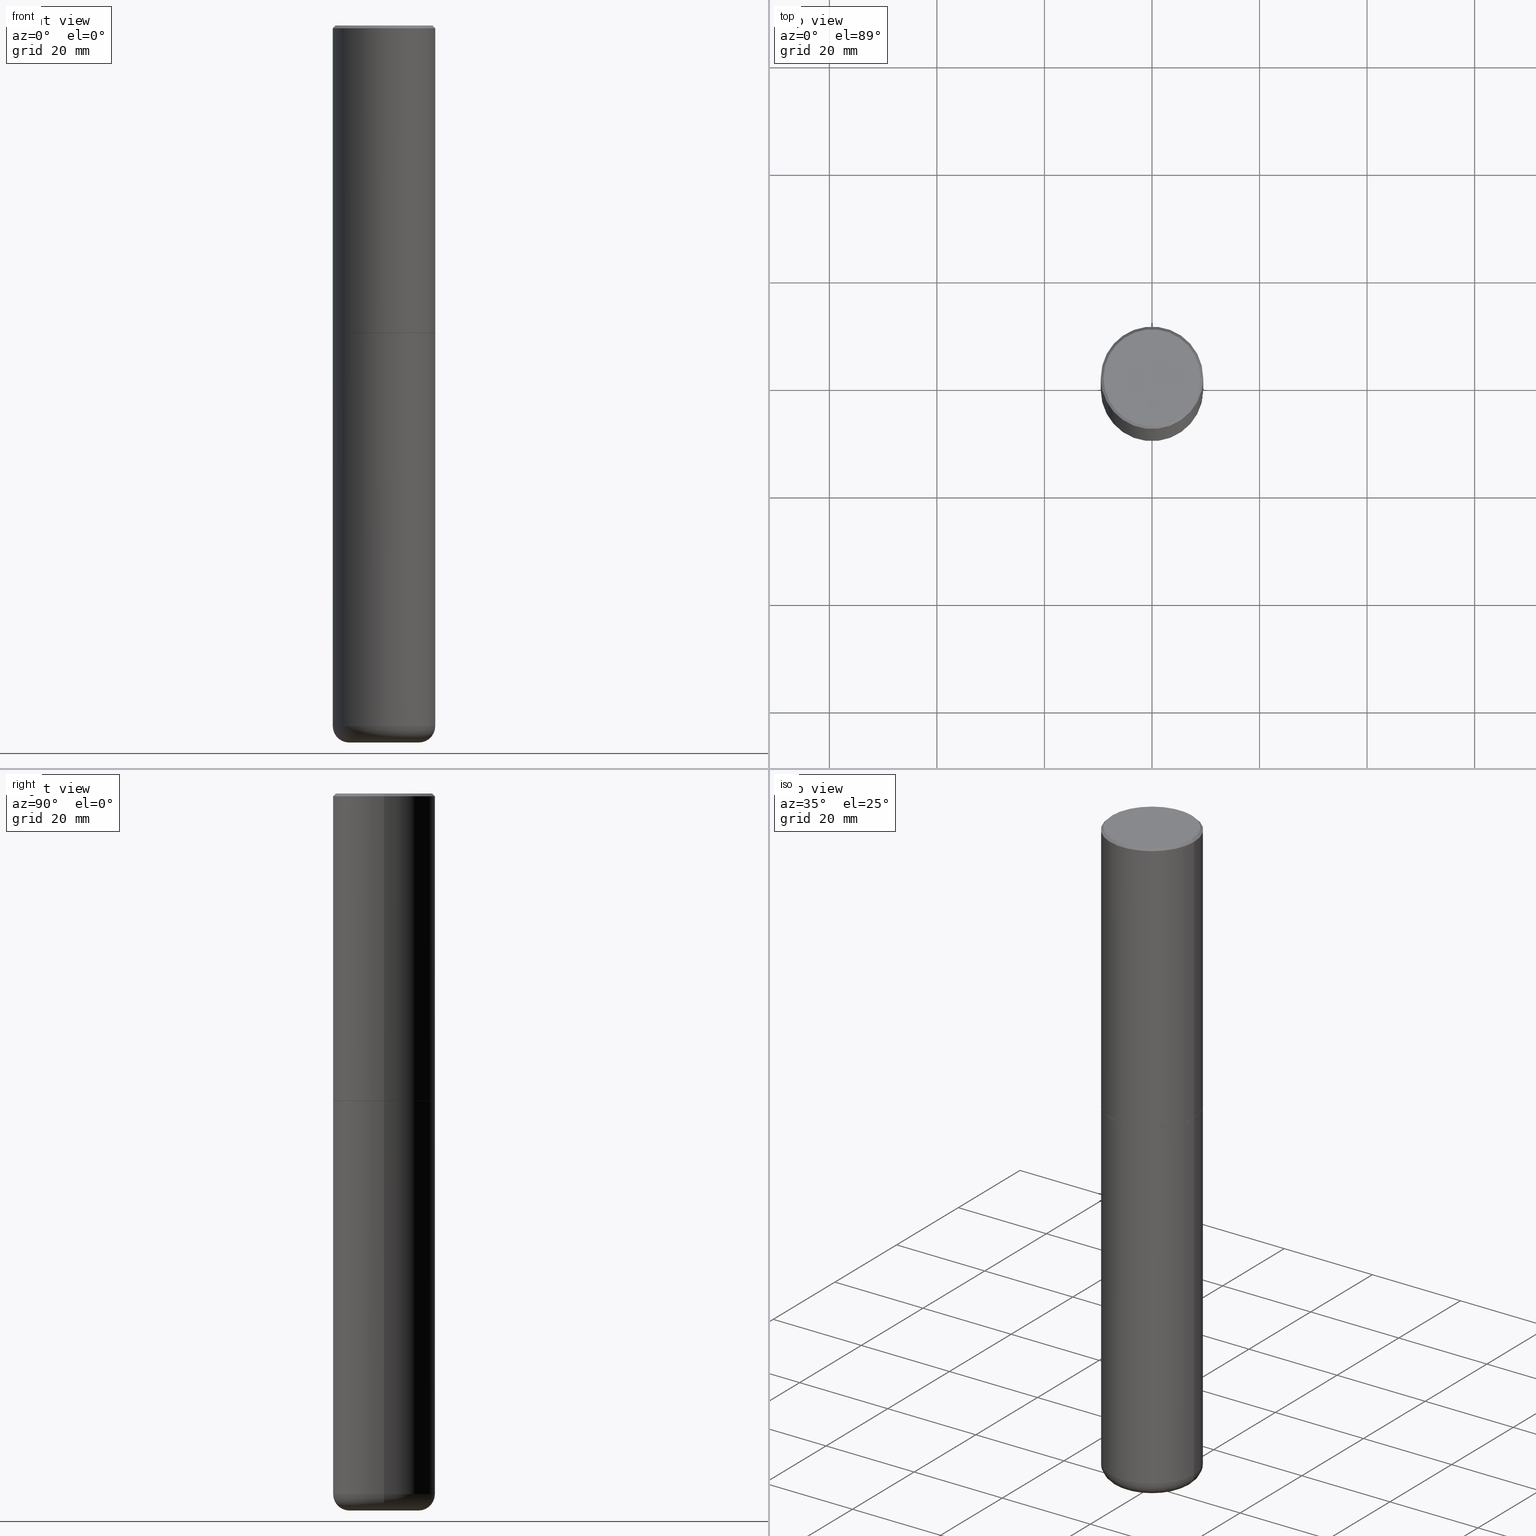
[diagram: canonical four-view strip — front | top / right | iso, engineering-drawing reading convention]
A machine part, canonical four-view strip (front | top / right | iso — engineering-drawing reading convention). The complete STEP part file that produces these views, byte-faithful:
ISO-10303-21;
HEADER;
FILE_DESCRIPTION (( 'STEP AP203' ),
    '1' );
FILE_NAME ('77459.STEP',
    '2024-05-02T19:44:49',
    ( '' ),
    ( '' ),
    'SwSTEP 2.0',
    'SolidWorks 2023',
    '' );
FILE_SCHEMA (( 'CONFIG_CONTROL_DESIGN' ));
ENDSEC;

DATA;
#1 = EDGE_LOOP ( 'NONE', ( #236, #32, #268, #145 ) ) ;
#2 = SHAPE_DEFINITION_REPRESENTATION ( #90, #57 ) ;
#3 = EDGE_CURVE ( 'NONE', #21, #169, #339, .T. ) ;
#4 = ORIENTED_EDGE ( 'NONE', *, *, #3, .F. ) ;
#5 = CARTESIAN_POINT ( 'NONE',  ( -0.3750000000000001665, 2.664535259100376880E-15, -1.844600658845590439E-29 ) ) ;
#6 = PERSON_AND_ORGANIZATION ( #296, #304 ) ;
#7 = ORIENTED_EDGE ( 'NONE', *, *, #45, .T. ) ;
#8 = SECURITY_CLASSIFICATION ( '', '', #367 ) ;
#9 = APPROVAL_STATUS ( 'not_yet_approved' ) ;
#10 = ORIENTED_EDGE ( 'NONE', *, *, #61, .F. ) ;
#11 = ORIENTED_EDGE ( 'NONE', *, *, #66, .F. ) ;
#12 = DATE_AND_TIME ( #42, #27 ) ;
#13 = CARTESIAN_POINT ( 'NONE',  ( 0.2550000000000000044, -2.011093251173650682E-14, -5.249999999999999112 ) ) ;
#14 = EDGE_LOOP ( 'NONE', ( #10, #11, #167, #407 ) ) ;
#15 = DIRECTION ( 'NONE',  ( -2.445468806185136597E-29, 3.491481338843145583E-15, 1.000000000000000000 ) ) ;
#16 = EDGE_CURVE ( 'NONE', #379, #375, #161, .T. ) ;
#17 = PRODUCT_DEFINITION_FORMATION_WITH_SPECIFIED_SOURCE ( 'ANY', '', #81, .NOT_KNOWN. ) ;
#18 = CARTESIAN_POINT ( 'NONE',  ( -0.3739999999999999991, -5.193104726306079780E-15, -2.250000000000000000 ) ) ;
#19 = ADVANCED_FACE ( 'NONE', ( #210 ), #282, .T. ) ;
#20 = ORIENTED_EDGE ( 'NONE', *, *, #315, .F. ) ;
#21 = VERTEX_POINT ( 'NONE', #46 ) ;
#22 = CARTESIAN_POINT ( 'NONE',  ( 5.499859345110371740E-29, -7.852341531058233864E-15, -2.249000000000000110 ) ) ;
#23 = AXIS2_PLACEMENT_3D ( 'NONE', #158, #392, #100 ) ;
#24 = DIRECTION ( 'NONE',  ( -0.7071067811866199593, 7.493145998870616062E-15, 0.7071067811864750752 ) ) ;
#25 = DIRECTION ( 'NONE',  ( -2.445468806185136597E-29, 3.491481338843145583E-15, 1.000000000000000000 ) ) ;
#26 = AXIS2_PLACEMENT_3D ( 'NONE', #416, #25, #214 ) ;
#27 = LOCAL_TIME ( 15, 44, 49.00000000000000000, #362 ) ;
#28 = APPLICATION_PROTOCOL_DEFINITION ( 'international standard', 'config_control_design', 1994, #89 ) ;
#29 = EDGE_CURVE ( 'NONE', #79, #246, #62, .T. ) ;
#30 = DIRECTION ( 'NONE',  ( 1.000000000000000000, -6.982962677686266711E-15, 4.876176775795935793E-29 ) ) ;
#31 = CARTESIAN_POINT ( 'NONE',  ( 0.000000000000000000, 0.000000000000000000, 0.000000000000000000 ) ) ;
#32 = ORIENTED_EDGE ( 'NONE', *, *, #95, .T. ) ;
#33 = PERSON_AND_ORGANIZATION ( #296, #304 ) ;
#34 = ORIENTED_EDGE ( 'NONE', *, *, #175, .F. ) ;
#35 = CARTESIAN_POINT ( 'NONE',  ( 5.502304813916557343E-29, -7.855833012397078448E-15, -2.250000000000000000 ) ) ;
#36 = EDGE_LOOP ( 'NONE', ( #20, #271 ) ) ;
#37 = PERSON_AND_ORGANIZATION ( #296, #304 ) ;
#38 = ORIENTED_EDGE ( 'NONE', *, *, #228, .F. ) ;
#39 = AXIS2_PLACEMENT_3D ( 'NONE', #190, #51, #318 ) ;
#40 = CYLINDRICAL_SURFACE ( 'NONE', #321, 0.3750000000000000555 ) ;
#41 = ORIENTED_EDGE ( 'NONE', *, *, #188, .F. ) ;
#42 = CALENDAR_DATE ( 2024, 2, 5 ) ;
#43 = DIRECTION ( 'NONE',  ( 2.445468806185136597E-29, -3.491481338843145583E-15, -1.000000000000000000 ) ) ;
#44 = DIRECTION ( 'NONE',  ( 0.7071067811865462405, -7.319954787623251312E-15, -0.7071067811865486830 ) ) ;
#45 = EDGE_CURVE ( 'NONE', #359, #330, #91, .T. ) ;
#46 = CARTESIAN_POINT ( 'NONE',  ( 0.3750000000000000555, -2.642516375941188029E-15, -0.02000000000000008715 ) ) ;
#47 = EDGE_CURVE ( 'NONE', #330, #359, #394, .T. ) ;
#48 = DIRECTION ( 'NONE',  ( -1.000000000000000000, 6.982962677686265922E-15, -4.876176775795935793E-29 ) ) ;
#49 = AXIS2_PLACEMENT_3D ( 'NONE', #370, #241, #374 ) ;
#50 = CARTESIAN_POINT ( 'NONE',  ( 1.254525497572975083E-28, -1.791129926826533659E-14, -5.129999999999999893 ) ) ;
#51 = DIRECTION ( 'NONE',  ( 2.445468806185136597E-29, -3.491481338843145583E-15, -1.000000000000000000 ) ) ;
#52 = DIRECTION ( 'NONE',  ( 2.438088387897960049E-29, -3.491481338843145188E-15, -1.000000000000000000 ) ) ;
#53 = LINE ( 'NONE', #412, #232 ) ;
#54 = DIRECTION ( 'NONE',  ( 1.000000000000000000, -6.982962677686266711E-15, 4.878367520217860717E-29 ) ) ;
#55 = AXIS2_PLACEMENT_3D ( 'NONE', #77, #15, #212 ) ;
#56 = APPROVAL ( #9, 'UNSPECIFIED' ) ;
#57 = ADVANCED_BREP_SHAPE_REPRESENTATION ( '77459', ( #369, #358, #386 ), #155 ) ;
#58 = DIRECTION ( 'NONE',  ( -2.445468806185136597E-29, 3.491481338843145583E-15, 1.000000000000000000 ) ) ;
#59 = DIRECTION ( 'NONE',  ( -2.445468806185136597E-29, 3.491481338843145583E-15, 1.000000000000000000 ) ) ;
#60 = CARTESIAN_POINT ( 'NONE',  ( 2.854868159318815822E-28, 4.167294683602726042E-15, -5.249999999999999112 ) ) ;
#61 = EDGE_CURVE ( 'NONE', #328, #21, #208, .T. ) ;
#62 = CIRCLE ( 'NONE', #154, 0.3739999999999999991 ) ;
#63 = AXIS2_PLACEMENT_3D ( 'NONE', #22, #146, #261 ) ;
#64 = DIRECTION ( 'NONE',  ( -2.445468806185136597E-29, 3.491481338843145583E-15, 1.000000000000000000 ) ) ;
#65 = APPLICATION_PROTOCOL_DEFINITION ( 'international standard', 'config_control_design', 1994, #383 ) ;
#66 = EDGE_CURVE ( 'NONE', #247, #328, #320, .T. ) ;
#67 = ORIENTED_EDGE ( 'NONE', *, *, #228, .T. ) ;
#68 = CONICAL_SURFACE ( 'NONE', #39, 0.3750000000000000555, 0.7853981633974466137 ) ;
#69 = APPROVAL_DATE_TIME ( #233, #56 ) ;
#70 = CARTESIAN_POINT ( 'NONE',  ( 0.000000000000000000, 0.000000000000000000, 0.000000000000000000 ) ) ;
#71 = APPROVAL_ROLE ( '' ) ;
#72 = APPROVAL_ROLE ( '' ) ;
#73 = ORIENTED_EDGE ( 'NONE', *, *, #93, .F. ) ;
#74 = PERSON_AND_ORGANIZATION_ROLE ( 'creator' ) ;
#75 = ORIENTED_EDGE ( 'NONE', *, *, #164, .T. ) ;
#76 = VECTOR ( 'NONE', #215, 39.37007874015748143 ) ;
#77 = CARTESIAN_POINT ( 'NONE',  ( 1.254525497572975083E-28, -1.791129926826533659E-14, -5.129999999999999893 ) ) ;
#78 = ORIENTED_EDGE ( 'NONE', *, *, #366, .F. ) ;
#79 = VERTEX_POINT ( 'NONE', #18 ) ;
#80 = ADVANCED_FACE ( 'NONE', ( #142 ), #111, .F. ) ;
#81 = PRODUCT ( '77459', '77459', '', ( #152 ) ) ;
#82 = ORIENTED_EDGE ( 'NONE', *, *, #188, .T. ) ;
#83 = ORIENTED_EDGE ( 'NONE', *, *, #16, .F. ) ;
#84 = UNCERTAINTY_MEASURE_WITH_UNIT (LENGTH_MEASURE( 1.000000000000000082E-05 ), #133, 'distance_accuracy_value', 'NONE');
#85 = DIRECTION ( 'NONE',  ( 1.000000000000000000, -6.982962677686265922E-15, 0.000000000000000000 ) ) ;
#86 = CARTESIAN_POINT ( 'NONE',  ( 0.3750000000000001665, -2.618611004132351200E-15, 1.828566290923476763E-29 ) ) ;
#87 = ORIENTED_EDGE ( 'NONE', *, *, #263, .T. ) ;
#88 = EDGE_CURVE ( 'NONE', #247, #169, #382, .T. ) ;
#89 = APPLICATION_CONTEXT ( 'configuration controlled 3d designs of mechanical parts and assemblies' ) ;
#90 = PRODUCT_DEFINITION_SHAPE ( 'NONE', 'NONE',  #237 ) ;
#91 = CIRCLE ( 'NONE', #55, 0.3750000000000000555 ) ;
#92 = CONICAL_SURFACE ( 'NONE', #123, 0.3750000000000000555, 0.7853981633974466137 ) ;
#93 = EDGE_CURVE ( 'NONE', #169, #21, #402, .T. ) ;
#94 = ORIENTED_EDGE ( 'NONE', *, *, #88, .F. ) ;
#95 = EDGE_CURVE ( 'NONE', #332, #373, #274, .T. ) ;
#96 = DIRECTION ( 'NONE',  ( -2.445468806185136597E-29, 3.491481338843145583E-15, 1.000000000000000000 ) ) ;
#97 = CARTESIAN_POINT ( 'NONE',  ( 5.502304813916557343E-29, -7.855833012397078448E-15, -2.250000000000000000 ) ) ;
#98 = AXIS2_PLACEMENT_3D ( 'NONE', #129, #157, #357 ) ;
#99 = ORIENTED_EDGE ( 'NONE', *, *, #336, .T. ) ;
#100 = DIRECTION ( 'NONE',  ( -1.000000000000000000, 7.105427357600993970E-15, 0.000000000000000000 ) ) ;
#101 = DATE_TIME_ROLE ( 'creation_date' ) ;
#102 = DATE_TIME_ROLE ( 'classification_date' ) ;
#103 = CARTESIAN_POINT ( 'NONE',  ( -0.3750000000000000555, -1.021903088123083182E-14, -2.250000000000000000 ) ) ;
#104 = APPROVAL_PERSON_ORGANIZATION ( #329, #56, #71 ) ;
#105 = DATE_AND_TIME ( #231, #380 ) ;
#106 = ORIENTED_EDGE ( 'NONE', *, *, #109, .F. ) ;
#107 = DIRECTION ( 'NONE',  ( 1.000000000000000000, -6.982962677686264344E-15, 0.000000000000000000 ) ) ;
#108 = FACE_OUTER_BOUND ( 'NONE', #378, .T. ) ;
#109 = EDGE_CURVE ( 'NONE', #359, #379, #120, .T. ) ;
#110 = DIRECTION ( 'NONE',  ( -2.445468806185136597E-29, 3.491481338843145583E-15, 1.000000000000000000 ) ) ;
#111 = PLANE ( 'NONE',  #291 ) ;
#112 = ORIENTED_EDGE ( 'NONE', *, *, #227, .T. ) ;
#113 = EDGE_LOOP ( 'NONE', ( #245, #112 ) ) ;
#114 = ADVANCED_FACE ( 'NONE', ( #385 ), #276, .T. ) ;
#115 = DIRECTION ( 'NONE',  ( 1.000000000000000000, -6.982962677686266711E-15, 4.876176775795935793E-29 ) ) ;
#116 = CIRCLE ( 'NONE', #26, 0.3739999999999999991 ) ;
#117 = CONICAL_SURFACE ( 'NONE', #162, 0.3739999999999999991, 0.7853981633975507526 ) ;
#118 = DIRECTION ( 'NONE',  ( 1.000000000000000000, -6.982962677686268288E-15, 0.000000000000000000 ) ) ;
#119 = LINE ( 'NONE', #253, #341 ) ;
#120 = LINE ( 'NONE', #186, #76 ) ;
#121 = CARTESIAN_POINT ( 'NONE',  ( 0.3750000000000000555, -2.618611004132350016E-15, 1.828566290923476203E-29 ) ) ;
#122 = CLOSED_SHELL ( 'NONE', ( #137, #384, #411, #19, #114, #124 ) ) ;
#123 = AXIS2_PLACEMENT_3D ( 'NONE', #270, #43, #279 ) ;
#124 = ADVANCED_FACE ( 'NONE', ( #347 ), #352, .T. ) ;
#125 = CARTESIAN_POINT ( 'NONE',  ( 0.000000000000000000, 0.000000000000000000, 0.000000000000000000 ) ) ;
#126 = DIRECTION ( 'NONE',  ( 1.000000000000000000, -6.982962677686265922E-15, 4.876176775795935793E-29 ) ) ;
#127 = DATE_AND_TIME ( #165, #325 ) ;
#128 = APPROVAL ( #355, 'UNSPECIFIED' ) ;
#129 = CARTESIAN_POINT ( 'NONE',  ( 1.283871123247196489E-28, -1.833027702892651007E-14, -5.249999999999999112 ) ) ;
#130 = EDGE_CURVE ( 'NONE', #375, #379, #140, .T. ) ;
#131 = ORIENTED_EDGE ( 'NONE', *, *, #315, .T. ) ;
#132 = ORIENTED_EDGE ( 'NONE', *, *, #130, .F. ) ;
#133 =( CONVERSION_BASED_UNIT ( 'INCH', #343 ) LENGTH_UNIT ( ) NAMED_UNIT ( #183 ) );
#134 = EDGE_LOOP ( 'NONE', ( #34, #297, #326, #405 ) ) ;
#135 = COORDINATED_UNIVERSAL_TIME_OFFSET ( 5, 0, .BEHIND. ) ;
#136 = EDGE_LOOP ( 'NONE', ( #306, #275, #132, #38 ) ) ;
#137 = ADVANCED_FACE ( 'NONE', ( #353 ), #40, .T. ) ;
#138 = EDGE_LOOP ( 'NONE', ( #82, #143, #371, #204 ) ) ;
#139 = AXIS2_PLACEMENT_3D ( 'NONE', #289, #58, #414 ) ;
#140 = CIRCLE ( 'NONE', #239, 0.3750000000000000555 ) ;
#141 = CC_DESIGN_DATE_AND_TIME_ASSIGNMENT ( #105, #101, ( #237 ) ) ;
#142 = FACE_OUTER_BOUND ( 'NONE', #113, .T. ) ;
#143 = ORIENTED_EDGE ( 'NONE', *, *, #175, .T. ) ;
#144 = CYLINDRICAL_SURFACE ( 'NONE', #283, 0.3750000000000001665 ) ;
#145 = ORIENTED_EDGE ( 'NONE', *, *, #45, .F. ) ;
#146 = DIRECTION ( 'NONE',  ( -2.445468806185136597E-29, 3.491481338843145583E-15, 1.000000000000000000 ) ) ;
#147 = AXIS2_PLACEMENT_3D ( 'NONE', #70, #226, #30 ) ;
#148 = DIRECTION ( 'NONE',  ( -2.445468806185136597E-29, 3.491481338843145583E-15, 1.000000000000000000 ) ) ;
#149 = DIRECTION ( 'NONE',  ( -0.7071067811865462405, 2.468850131082243650E-15, -0.7071067811865486830 ) ) ;
#150 = DIRECTION ( 'NONE',  ( 0.7071067811866199593, -2.468850131083015945E-15, 0.7071067811864750752 ) ) ;
#151 = ADVANCED_FACE ( 'NONE', ( #181 ), #92, .T. ) ;
#152 = MECHANICAL_CONTEXT ( 'NONE', #89, 'mechanical' ) ;
#153 = DIRECTION ( 'NONE',  ( 1.000000000000000000, -6.982962677686267499E-15, 0.000000000000000000 ) ) ;
#154 = AXIS2_PLACEMENT_3D ( 'NONE', #340, #238, #118 ) ;
#155 =( GEOMETRIC_REPRESENTATION_CONTEXT ( 3 ) GLOBAL_UNCERTAINTY_ASSIGNED_CONTEXT ( ( #84 ) ) GLOBAL_UNIT_ASSIGNED_CONTEXT ( ( #133, #398, #372 ) ) REPRESENTATION_CONTEXT ( 'NONE', 'WORKASPACE' ) );
#156 = DIRECTION ( 'NONE',  ( 1.000000000000000000, -6.982962677686265922E-15, 0.000000000000000000 ) ) ;
#157 = DIRECTION ( 'NONE',  ( -2.445468806185136597E-29, 3.491481338843145583E-15, 1.000000000000000000 ) ) ;
#158 = CARTESIAN_POINT ( 'NONE',  ( -0.2550000000000000044, -1.609941529207708187E-14, -5.129999999999999893 ) ) ;
#159 = CARTESIAN_POINT ( 'NONE',  ( 0.3550000000000001488, -2.538996582575041837E-15, -1.622034746237980703E-16 ) ) ;
#160 = DIRECTION ( 'NONE',  ( -2.445468806185136597E-29, 3.491481338843145583E-15, 1.000000000000000000 ) ) ;
#161 = CIRCLE ( 'NONE', #364, 0.3750000000000000555 ) ;
#162 = AXIS2_PLACEMENT_3D ( 'NONE', #346, #287, #387 ) ;
#163 = LOCAL_TIME ( 15, 44, 49.00000000000000000, #135 ) ;
#164 = EDGE_CURVE ( 'NONE', #333, #361, #224, .T. ) ;
#165 = CALENDAR_DATE ( 2024, 2, 5 ) ;
#166 = DIRECTION ( 'NONE',  ( 1.000000000000000000, -6.982962677686265922E-15, 4.876176775795935793E-29 ) ) ;
#167 = ORIENTED_EDGE ( 'NONE', *, *, #88, .T. ) ;
#168 = CARTESIAN_POINT ( 'NONE',  ( -0.3749999999999996669, -1.524676400916496405E-14, -5.129999999999999893 ) ) ;
#169 = VERTEX_POINT ( 'NONE', #284 ) ;
#170 = FACE_OUTER_BOUND ( 'NONE', #225, .T. ) ;
#171 = CALENDAR_DATE ( 2024, 2, 5 ) ;
#172 = VECTOR ( 'NONE', #44, 39.37007874015748854 ) ;
#173 = AXIS2_PLACEMENT_3D ( 'NONE', #285, #314, #153 ) ;
#174 = ORIENTED_EDGE ( 'NONE', *, *, #47, .F. ) ;
#175 = EDGE_CURVE ( 'NONE', #79, #361, #53, .T. ) ;
#176 = DIRECTION ( 'NONE',  ( -2.445468806185136597E-29, 3.491481338843145583E-15, 1.000000000000000000 ) ) ;
#177 = ORIENTED_EDGE ( 'NONE', *, *, #288, .T. ) ;
#178 = ORIENTED_EDGE ( 'NONE', *, *, #130, .T. ) ;
#179 = CARTESIAN_POINT ( 'NONE',  ( 5.502304813916557343E-29, -7.855833012397078448E-15, -2.250000000000000000 ) ) ;
#180 = AXIS2_PLACEMENT_3D ( 'NONE', #259, #148, #219 ) ;
#181 = FACE_OUTER_BOUND ( 'NONE', #305, .T. ) ;
#182 = CARTESIAN_POINT ( 'NONE',  ( 2.478951750578625787E-15, 0.3550000000000001488, -1.320577612601225142E-15 ) ) ;
#183 = DIMENSIONAL_EXPONENTS ( 1.000000000000000000, 0.000000000000000000, 0.000000000000000000, 0.000000000000000000, 0.000000000000000000, 0.000000000000000000, 0.000000000000000000 ) ;
#184 = CARTESIAN_POINT ( 'NONE',  ( 0.3739999999999999991, -1.046746105385174245E-14, -2.250000000000000000 ) ) ;
#185 = DIRECTION ( 'NONE',  ( -1.000000000000000000, 6.982962677686265922E-15, -4.876176775795935793E-29 ) ) ;
#186 = CARTESIAN_POINT ( 'NONE',  ( -0.3750000000000000555, 2.664535259100376091E-15, -1.844600658845589598E-29 ) ) ;
#187 = APPROVAL_PERSON_ORGANIZATION ( #33, #128, #197 ) ;
#188 = EDGE_CURVE ( 'NONE', #246, #79, #116, .T. ) ;
#189 = CC_DESIGN_PERSON_AND_ORGANIZATION_ASSIGNMENT ( #396, #74, ( #17 ) ) ;
#190 = CARTESIAN_POINT ( 'NONE',  ( 4.890937612370294178E-31, -6.982962677686321191E-17, -0.02000000000000008715 ) ) ;
#191 = DIRECTION ( 'NONE',  ( 2.438088387897960049E-29, -3.491481338843145188E-15, -1.000000000000000000 ) ) ;
#192 = EDGE_CURVE ( 'NONE', #246, #333, #119, .T. ) ;
#193 = CC_DESIGN_APPROVAL ( #303, ( #17 ) ) ;
#194 = LINE ( 'NONE', #5, #260 ) ;
#195 = CC_DESIGN_PERSON_AND_ORGANIZATION_ASSIGNMENT ( #393, #322, ( #237 ) ) ;
#196 = DIRECTION ( 'NONE',  ( 1.000000000000000000, -6.982962677686268288E-15, 0.000000000000000000 ) ) ;
#197 = APPROVAL_ROLE ( '' ) ;
#198 = PERSON_AND_ORGANIZATION ( #296, #304 ) ;
#199 = CARTESIAN_POINT ( 'NONE',  ( 0.3749999999999996669, -2.052991027239768345E-14, -5.129999999999999893 ) ) ;
#200 = CC_DESIGN_APPROVAL ( #128, ( #237 ) ) ;
#201 = CC_DESIGN_PERSON_AND_ORGANIZATION_ASSIGNMENT ( #198, #293, ( #8 ) ) ;
#202 = DIRECTION ( 'NONE',  ( -2.438088387897960049E-29, 3.491481338843145188E-15, 1.000000000000000000 ) ) ;
#203 = COORDINATED_UNIVERSAL_TIME_OFFSET ( 5, 0, .BEHIND. ) ;
#204 = ORIENTED_EDGE ( 'NONE', *, *, #192, .F. ) ;
#205 = AXIS2_PLACEMENT_3D ( 'NONE', #230, #323, #294 ) ;
#206 = EDGE_LOOP ( 'NONE', ( #106, #7, #67, #83 ) ) ;
#207 = ADVANCED_FACE ( 'NONE', ( #254 ), #117, .T. ) ;
#208 = LINE ( 'NONE', #252, #172 ) ;
#209 = CARTESIAN_POINT ( 'NONE',  ( 4.890937612370294178E-31, -6.982962677686321191E-17, -0.02000000000000008715 ) ) ;
#210 = FACE_OUTER_BOUND ( 'NONE', #206, .T. ) ;
#211 = CIRCLE ( 'NONE', #23, 0.1199999999999993988 ) ;
#212 = DIRECTION ( 'NONE',  ( 1.000000000000000000, -6.982962677686261189E-15, 0.000000000000000000 ) ) ;
#213 = DIRECTION ( 'NONE',  ( -2.445468806185136877E-29, 3.491481338843145188E-15, 1.000000000000000000 ) ) ;
#214 = DIRECTION ( 'NONE',  ( 1.000000000000000000, -6.982962677686268288E-15, 0.000000000000000000 ) ) ;
#215 = DIRECTION ( 'NONE',  ( -2.445468806185136877E-29, 3.491481338843145188E-15, 1.000000000000000000 ) ) ;
#216 = AXIS2_PLACEMENT_3D ( 'NONE', #257, #286, #156 ) ;
#217 = AXIS2_PLACEMENT_3D ( 'NONE', #179, #244, #48 ) ;
#218 = FACE_OUTER_BOUND ( 'NONE', #14, .T. ) ;
#219 = DIRECTION ( 'NONE',  ( 1.000000000000000000, -6.982962677686263555E-15, 4.883557194083111219E-29 ) ) ;
#220 = DIRECTION ( 'NONE',  ( 1.000000000000000000, 0.000000000000000000, 0.000000000000000000 ) ) ;
#221 = DIRECTION ( 'NONE',  ( 1.000000000000000000, -6.982962677686264344E-15, 0.000000000000000000 ) ) ;
#222 = CC_DESIGN_PERSON_AND_ORGANIZATION_ASSIGNMENT ( #240, #265, ( #17 ) ) ;
#223 = FACE_OUTER_BOUND ( 'NONE', #311, .T. ) ;
#224 = CIRCLE ( 'NONE', #173, 0.3750000000000002776 ) ;
#225 = EDGE_LOOP ( 'NONE', ( #131, #99, #174, #229 ) ) ;
#226 = DIRECTION ( 'NONE',  ( -2.445468806185136597E-29, 3.491481338843145583E-15, 1.000000000000000000 ) ) ;
#227 = EDGE_CURVE ( 'NONE', #328, #247, #331, .T. ) ;
#228 = EDGE_CURVE ( 'NONE', #330, #375, #413, .T. ) ;
#229 = ORIENTED_EDGE ( 'NONE', *, *, #351, .F. ) ;
#230 = CARTESIAN_POINT ( 'NONE',  ( 0.2550000000000000044, -1.969195475107533334E-14, -5.129999999999999893 ) ) ;
#231 = CALENDAR_DATE ( 2024, 2, 5 ) ;
#232 = VECTOR ( 'NONE', #24, 39.37007874015748143 ) ;
#233 = DATE_AND_TIME ( #269, #163 ) ;
#234 = APPROVAL_DATE_TIME ( #127, #128 ) ;
#235 = DESIGN_CONTEXT ( 'detailed design', #383, 'design' ) ;
#236 = ORIENTED_EDGE ( 'NONE', *, *, #336, .F. ) ;
#237 = PRODUCT_DEFINITION ( 'UNKNOWN', '', #17, #235 ) ;
#238 = DIRECTION ( 'NONE',  ( -2.445468806185136597E-29, 3.491481338843145583E-15, 1.000000000000000000 ) ) ;
#239 = AXIS2_PLACEMENT_3D ( 'NONE', #388, #96, #221 ) ;
#240 = PERSON_AND_ORGANIZATION ( #296, #304 ) ;
#241 = DIRECTION ( 'NONE',  ( -2.445468806185136597E-29, 3.491481338843145583E-15, 1.000000000000000000 ) ) ;
#242 = ADVANCED_FACE ( 'NONE', ( #218 ), #68, .T. ) ;
#243 = ORIENTED_EDGE ( 'NONE', *, *, #3, .T. ) ;
#244 = DIRECTION ( 'NONE',  ( 2.438088387897960049E-29, -3.491481338843145188E-15, -1.000000000000000000 ) ) ;
#245 = ORIENTED_EDGE ( 'NONE', *, *, #66, .T. ) ;
#246 = VERTEX_POINT ( 'NONE', #184 ) ;
#247 = VERTEX_POINT ( 'NONE', #312 ) ;
#248 = AXIS2_PLACEMENT_3D ( 'NONE', #410, #338, #307 ) ;
#249 = AXIS2_PLACEMENT_3D ( 'NONE', #209, #110, #85 ) ;
#250 = VECTOR ( 'NONE', #213, 39.37007874015748143 ) ;
#251 = DIRECTION ( 'NONE',  ( -2.445468806185136597E-29, 3.491481338843145583E-15, 1.000000000000000000 ) ) ;
#252 = CARTESIAN_POINT ( 'NONE',  ( 0.3750000000000000555, -2.642516375941188029E-15, -0.02000000000000008715 ) ) ;
#253 = CARTESIAN_POINT ( 'NONE',  ( 0.3739999999999999991, -1.046746105385174245E-14, -2.250000000000000000 ) ) ;
#254 = FACE_OUTER_BOUND ( 'NONE', #138, .T. ) ;
#255 = CLOSED_SHELL ( 'NONE', ( #207, #262, #151, #242, #319, #356, #334, #80 ) ) ;
#256 = APPROVAL_PERSON_ORGANIZATION ( #6, #303, #72 ) ;
#257 = CARTESIAN_POINT ( 'NONE',  ( 4.890937612370294178E-31, -6.982962677686321191E-17, -0.02000000000000008715 ) ) ;
#258 = DIRECTION ( 'NONE',  ( 0.000000000000000000, 0.000000000000000000, 1.000000000000000000 ) ) ;
#259 = CARTESIAN_POINT ( 'NONE',  ( 1.254525497572975083E-28, -1.791129926826533659E-14, -5.129999999999999893 ) ) ;
#260 = VECTOR ( 'NONE', #266, 39.37007874015748143 ) ;
#261 = DIRECTION ( 'NONE',  ( 1.000000000000000000, -6.982962677686267499E-15, 0.000000000000000000 ) ) ;
#262 = ADVANCED_FACE ( 'NONE', ( #345 ), #144, .T. ) ;
#263 = EDGE_CURVE ( 'NONE', #333, #21, #381, .T. ) ;
#264 = CYLINDRICAL_SURFACE ( 'NONE', #147, 0.3750000000000001665 ) ;
#265 = PERSON_AND_ORGANIZATION_ROLE ( 'design_supplier' ) ;
#266 = DIRECTION ( 'NONE',  ( -2.445468806185136877E-29, 3.491481338843145188E-15, 1.000000000000000000 ) ) ;
#267 = AXIS2_PLACEMENT_3D ( 'NONE', #50, #344, #308 ) ;
#268 = ORIENTED_EDGE ( 'NONE', *, *, #351, .T. ) ;
#269 = CALENDAR_DATE ( 2024, 2, 5 ) ;
#270 = CARTESIAN_POINT ( 'NONE',  ( 4.890937612370294178E-31, -6.982962677686321191E-17, -0.02000000000000008715 ) ) ;
#271 = ORIENTED_EDGE ( 'NONE', *, *, #95, .F. ) ;
#272 = CARTESIAN_POINT ( 'NONE',  ( 0.3750000000000000555, -1.047444401652942689E-14, -2.250000000000000000 ) ) ;
#273 = ORIENTED_EDGE ( 'NONE', *, *, #263, .F. ) ;
#274 = CIRCLE ( 'NONE', #139, 0.2550000000000000044 ) ;
#275 = ORIENTED_EDGE ( 'NONE', *, *, #109, .T. ) ;
#276 = TOROIDAL_SURFACE ( 'NONE', #180, 0.2550000000000000044, 0.1199999999999993711 ) ;
#277 =( LENGTH_UNIT ( ) NAMED_UNIT ( * ) SI_UNIT ( $, .METRE. ) );
#278 = DIRECTION ( 'NONE',  ( -2.445468806185136597E-29, 3.491481338843145583E-15, 1.000000000000000000 ) ) ;
#279 = DIRECTION ( 'NONE',  ( -1.000000000000000000, 6.982962677686265922E-15, 0.000000000000000000 ) ) ;
#280 = ORIENTED_EDGE ( 'NONE', *, *, #16, .T. ) ;
#281 = CARTESIAN_POINT ( 'NONE',  ( 0.000000000000000000, 0.000000000000000000, 0.000000000000000000 ) ) ;
#282 = CYLINDRICAL_SURFACE ( 'NONE', #248, 0.3750000000000000555 ) ;
#283 = AXIS2_PLACEMENT_3D ( 'NONE', #281, #251, #115 ) ;
#284 = CARTESIAN_POINT ( 'NONE',  ( -0.3750000000000000555, 2.548781377355486718E-15, -0.02000000000000008715 ) ) ;
#285 = CARTESIAN_POINT ( 'NONE',  ( 5.499859345110371740E-29, -7.852341531058233864E-15, -2.249000000000000110 ) ) ;
#286 = DIRECTION ( 'NONE',  ( -2.445468806185136597E-29, 3.491481338843145583E-15, 1.000000000000000000 ) ) ;
#287 = DIRECTION ( 'NONE',  ( -2.445468806185136597E-29, 3.491481338843145583E-15, 1.000000000000000000 ) ) ;
#288 = EDGE_CURVE ( 'NONE', #361, #333, #409, .T. ) ;
#289 = CARTESIAN_POINT ( 'NONE',  ( 1.283871123247196489E-28, -1.833027702892651007E-14, -5.249999999999999112 ) ) ;
#290 = FACE_OUTER_BOUND ( 'NONE', #300, .T. ) ;
#291 = AXIS2_PLACEMENT_3D ( 'NONE', #182, #52, #185 ) ;
#292 = CIRCLE ( 'NONE', #205, 0.1199999999999993988 ) ;
#293 = PERSON_AND_ORGANIZATION_ROLE ( 'classification_officer' ) ;
#294 = DIRECTION ( 'NONE',  ( 1.000000000000000000, -6.982962677686271444E-15, 0.000000000000000000 ) ) ;
#295 = COORDINATED_UNIVERSAL_TIME_OFFSET ( 5, 0, .BEHIND. ) ;
#296 = PERSON ( 'UNSPECIFIED', 'UNSPECIFIED', 'UNSPECIFIED', ('UNSPECIFIED'), ('UNSPECIFIED'), ('UNSPECIFIED') ) ;
#297 = ORIENTED_EDGE ( 'NONE', *, *, #29, .T. ) ;
#298 = CARTESIAN_POINT ( 'NONE',  ( -0.3750000000000002776, -1.296550319817168545E-15, -2.249000000000000110 ) ) ;
#299 = COORDINATED_UNIVERSAL_TIME_OFFSET ( 5, 0, .BEHIND. ) ;
#300 = EDGE_LOOP ( 'NONE', ( #78, #177, #87, #73 ) ) ;
#301 = DATE_AND_TIME ( #171, #309 ) ;
#302 = AXIS2_PLACEMENT_3D ( 'NONE', #404, #278, #376 ) ;
#303 = APPROVAL ( #368, 'UNSPECIFIED' ) ;
#304 = ORGANIZATION ( 'UNSPECIFIED', 'UNSPECIFIED', '' ) ;
#305 = EDGE_LOOP ( 'NONE', ( #406, #400, #243, #94 ) ) ;
#306 = ORIENTED_EDGE ( 'NONE', *, *, #47, .T. ) ;
#307 = DIRECTION ( 'NONE',  ( 1.000000000000000000, -6.982962677686265922E-15, 4.876176775795935793E-29 ) ) ;
#308 = DIRECTION ( 'NONE',  ( 1.000000000000000000, -6.982962677686261189E-15, 0.000000000000000000 ) ) ;
#309 = LOCAL_TIME ( 15, 44, 49.00000000000000000, #203 ) ;
#310 = CC_DESIGN_SECURITY_CLASSIFICATION ( #8, ( #17 ) ) ;
#311 = EDGE_LOOP ( 'NONE', ( #41, #377 ) ) ;
#312 = CARTESIAN_POINT ( 'NONE',  ( -0.3550000000000001488, 2.513866563967055858E-15, -1.622034746238331006E-16 ) ) ;
#313 = CARTESIAN_POINT ( 'NONE',  ( -0.3750000000000000555, 2.548781377355486718E-15, -0.02000000000000008715 ) ) ;
#314 = DIRECTION ( 'NONE',  ( -2.445468806185136597E-29, 3.491481338843145583E-15, 1.000000000000000000 ) ) ;
#315 = EDGE_CURVE ( 'NONE', #373, #332, #316, .T. ) ;
#316 = CIRCLE ( 'NONE', #98, 0.2550000000000000044 ) ;
#317 = EDGE_LOOP ( 'NONE', ( #75, #335, #4, #273 ) ) ;
#318 = DIRECTION ( 'NONE',  ( -1.000000000000000000, 6.982962677686265922E-15, 0.000000000000000000 ) ) ;
#319 = ADVANCED_FACE ( 'NONE', ( #290 ), #264, .T. ) ;
#320 = CIRCLE ( 'NONE', #302, 0.3550000000000001488 ) ;
#321 = AXIS2_PLACEMENT_3D ( 'NONE', #31, #160, #166 ) ;
#322 = PERSON_AND_ORGANIZATION_ROLE ( 'creator' ) ;
#323 = DIRECTION ( 'NONE',  ( -6.982962677686266711E-15, -1.000000000000000000, 3.491481338843145583E-15 ) ) ;
#324 = PERSON_AND_ORGANIZATION_ROLE ( 'design_owner' ) ;
#325 = LOCAL_TIME ( 15, 44, 49.00000000000000000, #299 ) ;
#326 = ORIENTED_EDGE ( 'NONE', *, *, #192, .T. ) ;
#327 = FACE_OUTER_BOUND ( 'NONE', #134, .T. ) ;
#328 = VERTEX_POINT ( 'NONE', #159 ) ;
#329 = PERSON_AND_ORGANIZATION ( #296, #304 ) ;
#330 = VERTEX_POINT ( 'NONE', #199 ) ;
#331 = CIRCLE ( 'NONE', #354, 0.3550000000000001488 ) ;
#332 = VERTEX_POINT ( 'NONE', #363 ) ;
#333 = VERTEX_POINT ( 'NONE', #360 ) ;
#334 = ADVANCED_FACE ( 'NONE', ( #223 ), #389, .F. ) ;
#335 = ORIENTED_EDGE ( 'NONE', *, *, #366, .T. ) ;
#336 = EDGE_CURVE ( 'NONE', #332, #359, #211, .T. ) ;
#337 = PLANE ( 'NONE',  #217 ) ;
#338 = DIRECTION ( 'NONE',  ( -2.445468806185136597E-29, 3.491481338843145583E-15, 1.000000000000000000 ) ) ;
#339 = CIRCLE ( 'NONE', #249, 0.3750000000000000555 ) ;
#340 = CARTESIAN_POINT ( 'NONE',  ( 5.502304813916557343E-29, -7.855833012397078448E-15, -2.250000000000000000 ) ) ;
#341 = VECTOR ( 'NONE', #150, 39.37007874015748143 ) ;
#342 = DIRECTION ( 'NONE',  ( -2.445468806185136877E-29, 3.491481338843145188E-15, 1.000000000000000000 ) ) ;
#343 = LENGTH_MEASURE_WITH_UNIT ( LENGTH_MEASURE( 0.02539999999999999897 ), #277 );
#344 = DIRECTION ( 'NONE',  ( -2.445468806185136597E-29, 3.491481338843145583E-15, 1.000000000000000000 ) ) ;
#345 = FACE_OUTER_BOUND ( 'NONE', #317, .T. ) ;
#346 = CARTESIAN_POINT ( 'NONE',  ( 5.502304813916557343E-29, -7.855833012397078448E-15, -2.250000000000000000 ) ) ;
#347 = FACE_OUTER_BOUND ( 'NONE', #36, .T. ) ;
#348 = VECTOR ( 'NONE', #149, 39.37007874015748854 ) ;
#349 = AXIS2_PLACEMENT_3D ( 'NONE', #60, #191, #417 ) ;
#350 = CC_DESIGN_DATE_AND_TIME_ASSIGNMENT ( #12, #102, ( #8 ) ) ;
#351 = EDGE_CURVE ( 'NONE', #373, #330, #292, .T. ) ;
#352 = PLANE ( 'NONE',  #349 ) ;
#353 = FACE_OUTER_BOUND ( 'NONE', #136, .T. ) ;
#354 = AXIS2_PLACEMENT_3D ( 'NONE', #408, #59, #54 ) ;
#355 = APPROVAL_STATUS ( 'not_yet_approved' ) ;
#356 = ADVANCED_FACE ( 'NONE', ( #327 ), #415, .T. ) ;
#357 = DIRECTION ( 'NONE',  ( 1.000000000000000000, -6.982962677686260400E-15, 0.000000000000000000 ) ) ;
#358 = MANIFOLD_SOLID_BREP ( 'Body-Move/Copy2[2]', #255 ) ;
#359 = VERTEX_POINT ( 'NONE', #168 ) ;
#360 = CARTESIAN_POINT ( 'NONE',  ( 0.3750000000000002776, -1.047095253519058704E-14, -2.249000000000000110 ) ) ;
#361 = VERTEX_POINT ( 'NONE', #298 ) ;
#362 = COORDINATED_UNIVERSAL_TIME_OFFSET ( 5, 0, .BEHIND. ) ;
#363 = CARTESIAN_POINT ( 'NONE',  ( -0.2550000000000000044, -1.588257853095161128E-14, -5.249999999999999112 ) ) ;
#364 = AXIS2_PLACEMENT_3D ( 'NONE', #399, #176, #107 ) ;
#365 = VECTOR ( 'NONE', #342, 39.37007874015748143 ) ;
#366 = EDGE_CURVE ( 'NONE', #361, #169, #194, .T. ) ;
#367 = SECURITY_CLASSIFICATION_LEVEL ( 'unclassified' ) ;
#368 = APPROVAL_STATUS ( 'not_yet_approved' ) ;
#369 = MANIFOLD_SOLID_BREP ( 'Body-Move/Copy2[1]', #122 ) ;
#370 = CARTESIAN_POINT ( 'NONE',  ( 1.254525497572975083E-28, -1.791129926826533659E-14, -5.129999999999999893 ) ) ;
#371 = ORIENTED_EDGE ( 'NONE', *, *, #164, .F. ) ;
#372 =( NAMED_UNIT ( * ) SI_UNIT ( $, .STERADIAN. ) SOLID_ANGLE_UNIT ( ) );
#373 = VERTEX_POINT ( 'NONE', #13 ) ;
#374 = DIRECTION ( 'NONE',  ( 1.000000000000000000, -6.982962677686263555E-15, 4.883557194083111219E-29 ) ) ;
#375 = VERTEX_POINT ( 'NONE', #272 ) ;
#376 = DIRECTION ( 'NONE',  ( 1.000000000000000000, -6.982962677686266711E-15, 4.878367520217860717E-29 ) ) ;
#377 = ORIENTED_EDGE ( 'NONE', *, *, #29, .F. ) ;
#378 = EDGE_LOOP ( 'NONE', ( #178, #280 ) ) ;
#379 = VERTEX_POINT ( 'NONE', #103 ) ;
#380 = LOCAL_TIME ( 15, 44, 49.00000000000000000, #295 ) ;
#381 = LINE ( 'NONE', #86, #250 ) ;
#382 = LINE ( 'NONE', #313, #348 ) ;
#383 = APPLICATION_CONTEXT ( 'configuration controlled 3d designs of mechanical parts and assemblies' ) ;
#384 = ADVANCED_FACE ( 'NONE', ( #170 ), #403, .T. ) ;
#385 = FACE_OUTER_BOUND ( 'NONE', #1, .T. ) ;
#386 = AXIS2_PLACEMENT_3D ( 'NONE', #125, #258, #220 ) ;
#387 = DIRECTION ( 'NONE',  ( 1.000000000000000000, -6.982962677686268288E-15, 0.000000000000000000 ) ) ;
#388 = CARTESIAN_POINT ( 'NONE',  ( 5.502304813916557343E-29, -7.855833012397078448E-15, -2.250000000000000000 ) ) ;
#389 = PLANE ( 'NONE',  #390 ) ;
#390 = AXIS2_PLACEMENT_3D ( 'NONE', #97, #202, #126 ) ;
#391 = CC_DESIGN_PERSON_AND_ORGANIZATION_ASSIGNMENT ( #37, #324, ( #81 ) ) ;
#392 = DIRECTION ( 'NONE',  ( 7.105427357601001859E-15, 1.000000000000000000, -3.491481338843145583E-15 ) ) ;
#393 = PERSON_AND_ORGANIZATION ( #296, #304 ) ;
#394 = CIRCLE ( 'NONE', #267, 0.3750000000000000555 ) ;
#395 = CC_DESIGN_APPROVAL ( #56, ( #8 ) ) ;
#396 = PERSON_AND_ORGANIZATION ( #296, #304 ) ;
#397 = APPROVAL_DATE_TIME ( #301, #303 ) ;
#398 =( NAMED_UNIT ( * ) PLANE_ANGLE_UNIT ( ) SI_UNIT ( $, .RADIAN. ) );
#399 = CARTESIAN_POINT ( 'NONE',  ( 5.502304813916557343E-29, -7.855833012397078448E-15, -2.250000000000000000 ) ) ;
#400 = ORIENTED_EDGE ( 'NONE', *, *, #61, .T. ) ;
#401 = PRODUCT_RELATED_PRODUCT_CATEGORY ( 'detail', '', ( #81 ) ) ;
#402 = CIRCLE ( 'NONE', #216, 0.3750000000000000555 ) ;
#403 = TOROIDAL_SURFACE ( 'NONE', #49, 0.2550000000000000044, 0.1199999999999993711 ) ;
#404 = CARTESIAN_POINT ( 'NONE',  ( 3.966635374473835042E-45, -5.663304047445699634E-31, -1.622034746238156224E-16 ) ) ;
#405 = ORIENTED_EDGE ( 'NONE', *, *, #288, .F. ) ;
#406 = ORIENTED_EDGE ( 'NONE', *, *, #227, .F. ) ;
#407 = ORIENTED_EDGE ( 'NONE', *, *, #93, .T. ) ;
#408 = CARTESIAN_POINT ( 'NONE',  ( 3.966635374473835042E-45, -5.663304047445699634E-31, -1.622034746238156224E-16 ) ) ;
#409 = CIRCLE ( 'NONE', #63, 0.3750000000000002776 ) ;
#410 = CARTESIAN_POINT ( 'NONE',  ( 0.000000000000000000, 0.000000000000000000, 0.000000000000000000 ) ) ;
#411 = ADVANCED_FACE ( 'NONE', ( #108 ), #337, .F. ) ;
#412 = CARTESIAN_POINT ( 'NONE',  ( -0.3739999999999999991, -5.198403180654302971E-15, -2.250000000000000000 ) ) ;
#413 = LINE ( 'NONE', #121, #365 ) ;
#414 = DIRECTION ( 'NONE',  ( 1.000000000000000000, -6.982962677686260400E-15, 0.000000000000000000 ) ) ;
#415 = CONICAL_SURFACE ( 'NONE', #418, 0.3739999999999999991, 0.7853981633975507526 ) ;
#416 = CARTESIAN_POINT ( 'NONE',  ( 5.502304813916557343E-29, -7.855833012397078448E-15, -2.250000000000000000 ) ) ;
#417 = DIRECTION ( 'NONE',  ( -1.000000000000000000, 6.982962677686265922E-15, -4.876176775795935793E-29 ) ) ;
#418 = AXIS2_PLACEMENT_3D ( 'NONE', #35, #64, #196 ) ;
ENDSEC;
END-ISO-10303-21;
